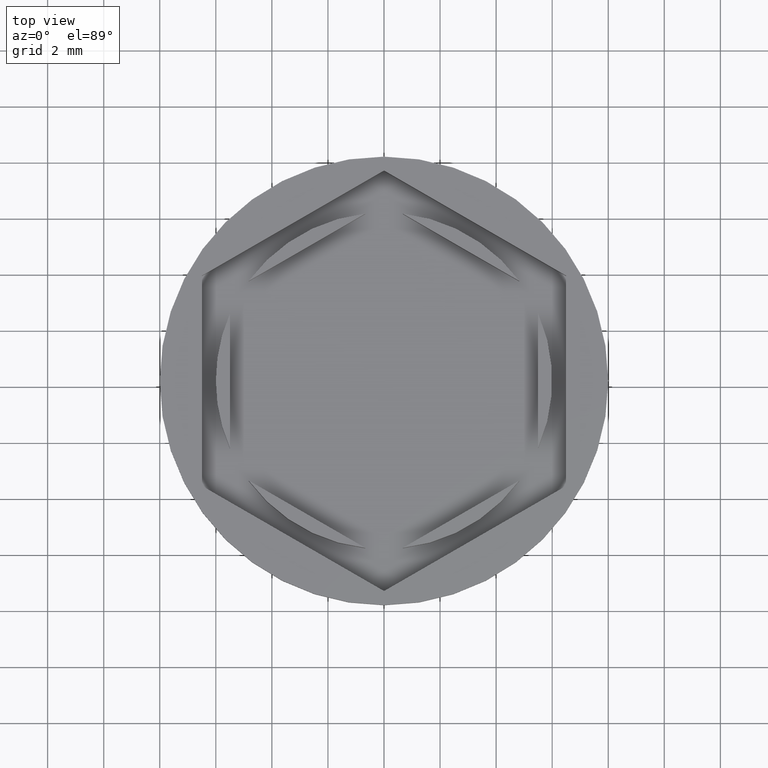
[diagram: clean part render]
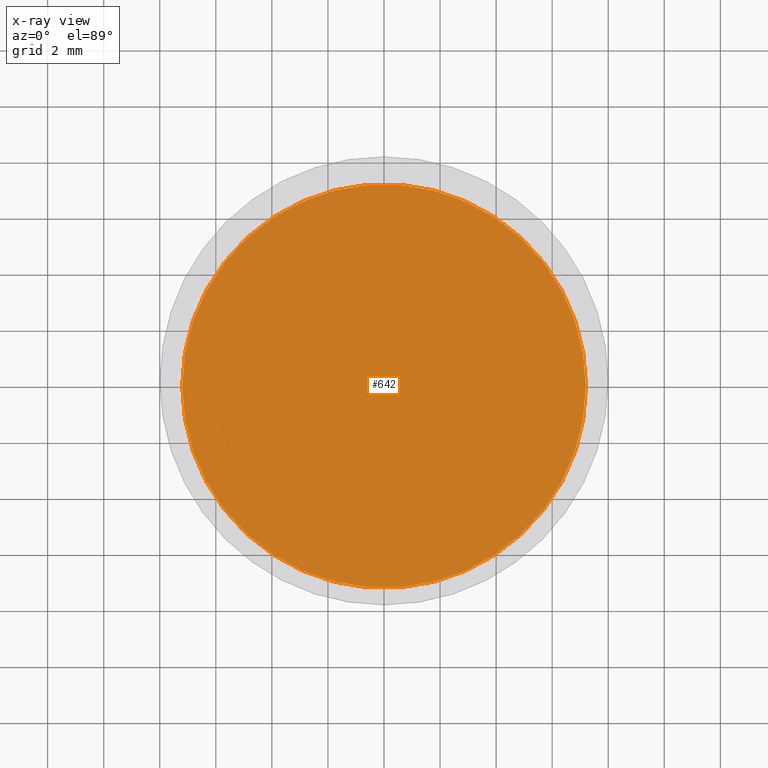
[diagram: x-ray — body ghosted, one internal face saturated and labeled with its STEP entity id]
A machine part, top view, then the same camera in x-ray: the body is ghosted and one INTERNAL B-rep face — a face not visible from any outside direction — is saturated and labeled: STEP entity #642.
In plain terms, the highlighted planar face has unit normal (0, 0, -1).
Its self-contained STEP definition (entity closure, byte-faithful):
#121 = ORIENTED_EDGE ( 'NONE', *, *, #194, .T. ) ;
#140 = EDGE_LOOP ( 'NONE', ( #121, #807 ) ) ;
#194 = EDGE_CURVE ( 'NONE', #759, #267, #1452, .T. ) ;
#267 = VERTEX_POINT ( 'NONE', #840 ) ;
#318 = DIRECTION ( 'NONE',  ( -1.000000000000000000, 0.000000000000000000, -0.000000000000000000 ) ) ;
#459 = DIRECTION ( 'NONE',  ( -0.000000000000000000, -0.000000000000000000, 1.000000000000000000 ) ) ;
#571 = AXIS2_PLACEMENT_3D ( 'NONE', #1414, #809, #1725 ) ;
#611 = CARTESIAN_POINT ( 'NONE',  ( 0.000000000000000000, 0.000000000000000000, -11.00000000000000000 ) ) ;
#642 = ADVANCED_FACE ( 'NONE', ( #1994 ), #1697, .F. ) ;
#759 = VERTEX_POINT ( 'NONE', #1420 ) ;
#807 = ORIENTED_EDGE ( 'NONE', *, *, #1009, .T. ) ;
#809 = DIRECTION ( 'NONE',  ( -0.000000000000000000, -0.000000000000000000, 1.000000000000000000 ) ) ;
#827 = AXIS2_PLACEMENT_3D ( 'NONE', #611, #459, #1379 ) ;
#840 = CARTESIAN_POINT ( 'NONE',  ( 7.200000000000001954, 9.001153973733047589E-16, -11.00000000000000000 ) ) ;
#865 = CIRCLE ( 'NONE', #827, 7.200000000000001954 ) ;
#1003 = AXIS2_PLACEMENT_3D ( 'NONE', #1248, #1395, #318 ) ;
#1009 = EDGE_CURVE ( 'NONE', #267, #759, #865, .T. ) ;
#1248 = CARTESIAN_POINT ( 'NONE',  ( 0.000000000000000000, 0.000000000000000000, -11.00000000000000000 ) ) ;
#1379 = DIRECTION ( 'NONE',  ( -1.000000000000000000, 0.000000000000000000, 0.000000000000000000 ) ) ;
#1395 = DIRECTION ( 'NONE',  ( 0.000000000000000000, 0.000000000000000000, -1.000000000000000000 ) ) ;
#1414 = CARTESIAN_POINT ( 'NONE',  ( 0.000000000000000000, 0.000000000000000000, -11.00000000000000000 ) ) ;
#1420 = CARTESIAN_POINT ( 'NONE',  ( -7.200000000000001954, 0.000000000000000000, -11.00000000000000000 ) ) ;
#1452 = CIRCLE ( 'NONE', #571, 7.200000000000001954 ) ;
#1697 = PLANE ( 'NONE',  #1003 ) ;
#1725 = DIRECTION ( 'NONE',  ( -1.000000000000000000, 0.000000000000000000, 0.000000000000000000 ) ) ;
#1994 = FACE_OUTER_BOUND ( 'NONE', #140, .T. ) ;